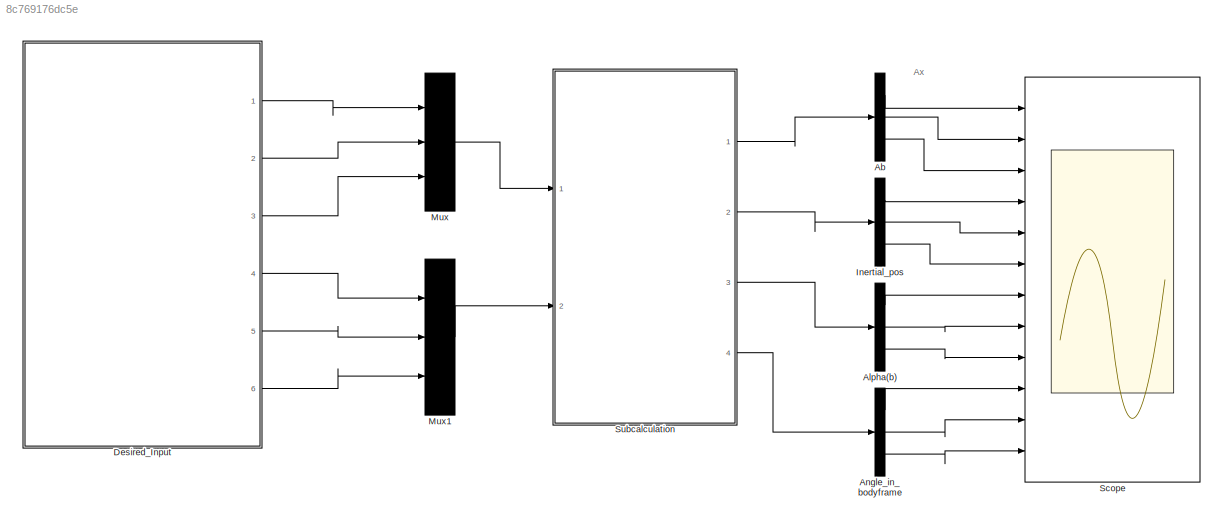
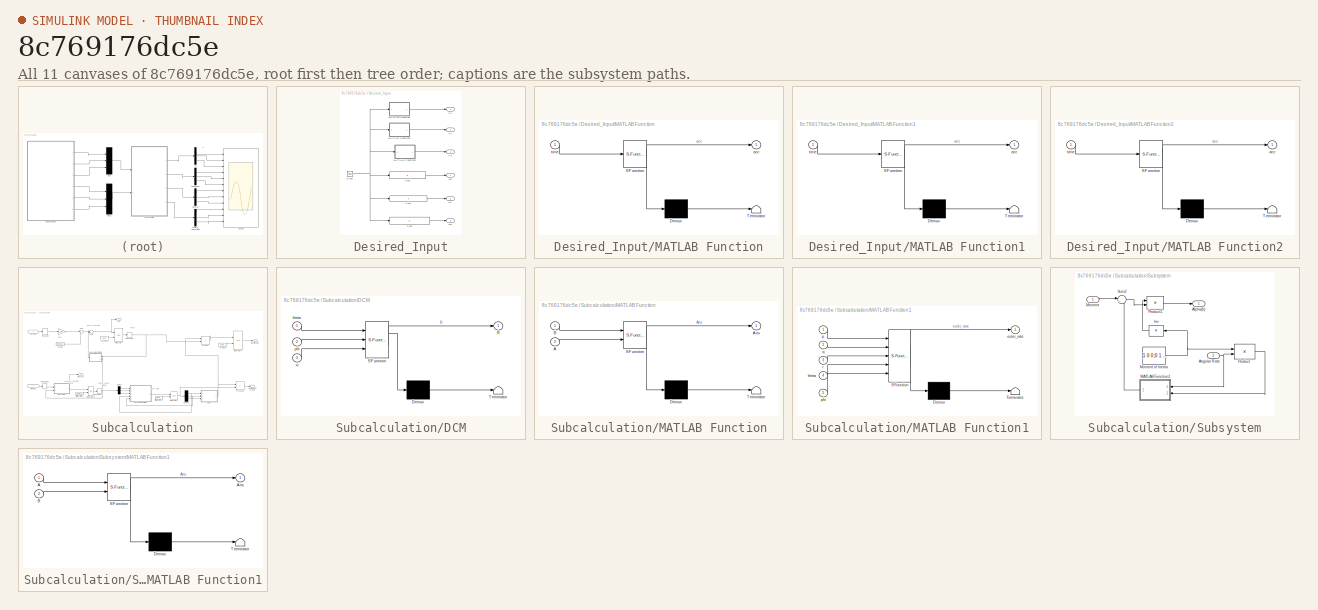
[diagram: thumbnail index - all 11 canvases of the model, root first then tree order]
MODEL slx_8c769176dc5e
KIND model
CONFIG AbsTol = auto
CONFIG EnableMultiTasking = off
CONFIG FixedStep = 0.01
CONFIG MaxStep = auto
CONFIG MinStep = auto
CONFIG RelTol = 1e-3
CONFIG SampleTimeConstraint = Unconstrained
CONFIG Solver = FixedStepAuto
CONFIG SolverName = FixedStepAuto
CONFIG StartTime = 0.0
CONFIG StopTime = 150
BLOCK [Demux] Ab
  DisplayOption = bar
  Outputs = 3
  Ports = [1, 3]
BLOCK [Demux] Alpha(b)
  DisplayOption = bar
  Outputs = 3
  Ports = [1, 3]
BLOCK [Demux] Angle_in_bodyframe
  DisplayOption = bar
  Outputs = 3
  Ports = [1, 3]
BLOCK [SubSystem] Desired_Input
  Ports = [0, 6]
  RequestExecContextInheritance = off
  Variant = off
BLOCK [Clock] Desired_Input/Clock
BLOCK [Fcn] Desired_Input/Fcn2
  Expr = 0
BLOCK [Fcn] Desired_Input/Fcn5
  Expr = 0
BLOCK [Fcn] Desired_Input/Fcn6
  Expr = 0
BLOCK [Outport] Desired_Input/Fx
  IconDisplay = Port number
BLOCK [Outport] Desired_Input/Fy
  IconDisplay = Port number
  Port = 2
BLOCK [Outport] Desired_Input/Fz
  IconDisplay = Port number
  Port = 3
BLOCK [SubSystem] Desired_Input/MATLAB Function
  ErrorFcn = Stateflow.Translate.translate
  PermitHierarchicalResolution = ExplicitOnly
  Ports = [1, 1]
  RequestExecContextInheritance = off
  SFBlockType = MATLAB Function
  TreatAsAtomicUnit = on
  Variant = off
BLOCK [Demux] Desired_Input/MATLAB Function/ Demux 
  Outputs = 1
  Ports = [1, 1]
BLOCK [S-Function] Desired_Input/MATLAB Function/ SFunction 
  EnableBusSupport = on
  FunctionName = sf_sfun
  PortCounts = [1 2]
  Ports = [1, 2]
  SFcnIsStateOwnerBlock = off
  SFunctionDeploymentMode = off
  Tag = Stateflow S-Function Force_input_user 5
BLOCK [Terminator] Desired_Input/MATLAB Function/ Terminator 
BLOCK [Outport] Desired_Input/MATLAB Function/acc
  IconDisplay = Port number
BLOCK [Inport] Desired_Input/MATLAB Function/time
  IconDisplay = Port number
BLOCK [SubSystem] Desired_Input/MATLAB Function1
  ErrorFcn = Stateflow.Translate.translate
  PermitHierarchicalResolution = ExplicitOnly
  Ports = [1, 1]
  RequestExecContextInheritance = off
  SFBlockType = MATLAB Function
  TreatAsAtomicUnit = on
  Variant = off
BLOCK [Demux] Desired_Input/MATLAB Function1/ Demux 
  Outputs = 1
  Ports = [1, 1]
BLOCK [S-Function] Desired_Input/MATLAB Function1/ SFunction 
  EnableBusSupport = on
  FunctionName = sf_sfun
  PortCounts = [1 2]
  Ports = [1, 2]
  SFcnIsStateOwnerBlock = off
  SFunctionDeploymentMode = off
  Tag = Stateflow S-Function Force_input_user 6
BLOCK [Terminator] Desired_Input/MATLAB Function1/ Terminator 
BLOCK [Outport] Desired_Input/MATLAB Function1/acc
  IconDisplay = Port number
BLOCK [Inport] Desired_Input/MATLAB Function1/time
  IconDisplay = Port number
BLOCK [SubSystem] Desired_Input/MATLAB Function2
  ErrorFcn = Stateflow.Translate.translate
  PermitHierarchicalResolution = ExplicitOnly
  Ports = [1, 1]
  RequestExecContextInheritance = off
  SFBlockType = MATLAB Function
  TreatAsAtomicUnit = on
  Variant = off
BLOCK [Demux] Desired_Input/MATLAB Function2/ Demux 
  Outputs = 1
  Ports = [1, 1]
BLOCK [S-Function] Desired_Input/MATLAB Function2/ SFunction 
  EnableBusSupport = on
  FunctionName = sf_sfun
  PortCounts = [1 2]
  Ports = [1, 2]
  SFcnIsStateOwnerBlock = off
  SFunctionDeploymentMode = off
  Tag = Stateflow S-Function Force_input_user 7
BLOCK [Terminator] Desired_Input/MATLAB Function2/ Terminator 
BLOCK [Outport] Desired_Input/MATLAB Function2/acc
  IconDisplay = Port number
BLOCK [Inport] Desired_Input/MATLAB Function2/time
  IconDisplay = Port number
BLOCK [Outport] Desired_Input/Mx
  IconDisplay = Port number
  Port = 4
BLOCK [Outport] Desired_Input/My
  IconDisplay = Port number
  Port = 5
BLOCK [Outport] Desired_Input/Mz 
  IconDisplay = Port number
  Port = 6
BLOCK [Demux] Inertial_pos
  DisplayOption = bar
  Outputs = 3
  Ports = [1, 3]
BLOCK [Mux] Mux
  DisplayOption = bar
  Inputs = 3
  Ports = [3, 1]
BLOCK [Mux] Mux1
  DisplayOption = bar
  Inputs = 3
  Ports = [3, 1]
BLOCK [Scope] Scope
  NumInputPorts = 12
  Ports = [12]
  ScopeSpecificationString = Simulink.scopes.TimeScopeBlockCfg('CurrentConfiguration', extmgr.ConfigurationSet(extmgr.Configuration('Core','General UI',true,'FigureColor',[0 0 0]),extmgr.Configuration('Core','Source UI',true),extmgr.Configuration('Sources','WiredSimulink',true),extmgr.Configuration('Visuals','Time Domain',true,'SerializedDisplays',{struct('MinYLimReal','-12.5','MaxYLimReal','12.5','YLabelReal','','MinYLimMag'...<+10441ch>
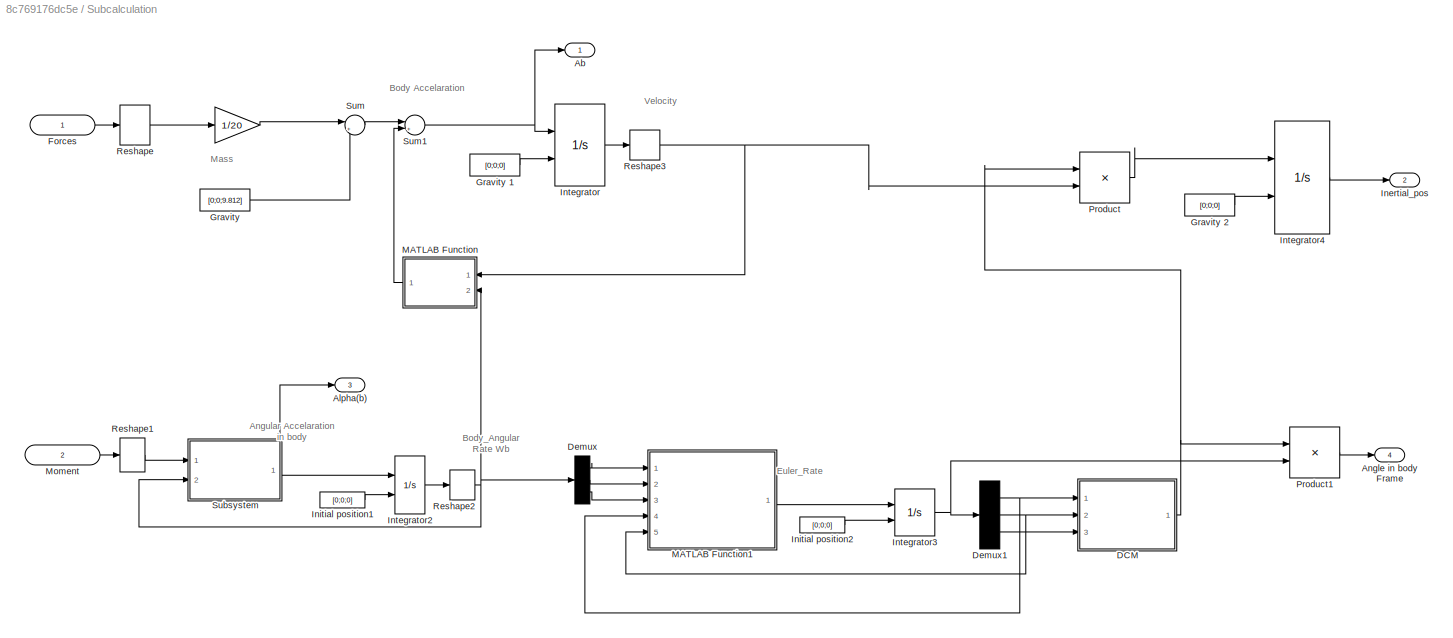
BLOCK [SubSystem] Subcalculation
  Ports = [2, 4]
  RequestExecContextInheritance = off
  Variant = off
BLOCK [Gain] Subcalculation/ 
  Gain = 1/20
  OutDataTypeStr = Inherit: Inherit via internal rule
  ParamDataTypeStr = Inherit: Inherit via internal rule
  SaturateOnIntegerOverflow = off
BLOCK [Outport] Subcalculation/Ab 
  IconDisplay = Port number
BLOCK [Outport] Subcalculation/Alpha(b) 
  IconDisplay = Port number
  Port = 3
BLOCK [Outport] Subcalculation/Angle in body Frame
  IconDisplay = Port number
  Port = 4
BLOCK [SubSystem] Subcalculation/DCM
  ErrorFcn = Stateflow.Translate.translate
  PermitHierarchicalResolution = ExplicitOnly
  Ports = [3, 1]
  RequestExecContextInheritance = off
  SFBlockType = MATLAB Function
  TreatAsAtomicUnit = on
  Variant = off
BLOCK [Demux] Subcalculation/DCM/ Demux 
  Outputs = 1
  Ports = [1, 1]
BLOCK [S-Function] Subcalculation/DCM/ SFunction 
  EnableBusSupport = on
  FunctionName = sf_sfun
  PortCounts = [3 2]
  Ports = [3, 2]
  SFcnIsStateOwnerBlock = off
  SFunctionDeploymentMode = off
  Tag = Stateflow S-Function Force_input_user 3
BLOCK [Terminator] Subcalculation/DCM/ Terminator 
BLOCK [Outport] Subcalculation/DCM/R
  IconDisplay = Port number
BLOCK [Inport] Subcalculation/DCM/phi
  IconDisplay = Port number
  Port = 2
BLOCK [Inport] Subcalculation/DCM/theta
  IconDisplay = Port number
BLOCK [Inport] Subcalculation/DCM/xi
  IconDisplay = Port number
  Port = 3
BLOCK [Demux] Subcalculation/Demux
  DisplayOption = bar
  Outputs = 3
  Ports = [1, 3]
BLOCK [Demux] Subcalculation/Demux1
  DisplayOption = bar
  Outputs = 3
  Ports = [1, 3]
BLOCK [Inport] Subcalculation/Forces 
  IconDisplay = Port number
BLOCK [Constant] Subcalculation/Gravity 
  Value = [0;0;9.812]
  VectorParams1D = off
BLOCK [Constant] Subcalculation/Gravity 1
  Value = [0;0;0]
  VectorParams1D = off
BLOCK [Constant] Subcalculation/Gravity 2
  Value = [0;0;0]
  VectorParams1D = off
BLOCK [Outport] Subcalculation/Inertial_pos
  IconDisplay = Port number
  Port = 2
BLOCK [Constant] Subcalculation/Initial position1
  Value = [0;0;0]
BLOCK [Constant] Subcalculation/Initial position2
  Value = [0;0;0]
BLOCK [Integrator] Subcalculation/Integrator
  InitialConditionSource = external
  LowerSaturationLimit = 0
  Ports = [2, 1]
BLOCK [Integrator] Subcalculation/Integrator2
  InitialConditionSource = external
  Ports = [2, 1]
BLOCK [Integrator] Subcalculation/Integrator3
  InitialConditionSource = external
  Ports = [2, 1]
BLOCK [Integrator] Subcalculation/Integrator4
  InitialConditionSource = external
  LowerSaturationLimit = 0
  Ports = [2, 1]
BLOCK [SubSystem] Subcalculation/MATLAB Function
  ErrorFcn = Stateflow.Translate.translate
  PermitHierarchicalResolution = ExplicitOnly
  Ports = [2, 1]
  RequestExecContextInheritance = off
  SFBlockType = MATLAB Function
  TreatAsAtomicUnit = on
  Variant = off
BLOCK [Demux] Subcalculation/MATLAB Function/ Demux 
  Outputs = 1
  Ports = [1, 1]
BLOCK [S-Function] Subcalculation/MATLAB Function/ SFunction 
  EnableBusSupport = on
  FunctionName = sf_sfun
  PortCounts = [2 2]
  Ports = [2, 2]
  SFcnIsStateOwnerBlock = off
  SFunctionDeploymentMode = off
  Tag = Stateflow S-Function Force_input_user 1
BLOCK [Terminator] Subcalculation/MATLAB Function/ Terminator 
BLOCK [Inport] Subcalculation/MATLAB Function/A
  IconDisplay = Port number
  Port = 2
BLOCK [Outport] Subcalculation/MATLAB Function/Ans
  IconDisplay = Port number
BLOCK [Inport] Subcalculation/MATLAB Function/B
  IconDisplay = Port number
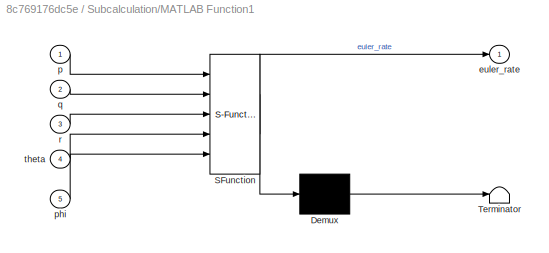
BLOCK [SubSystem] Subcalculation/MATLAB Function1
  ErrorFcn = Stateflow.Translate.translate
  PermitHierarchicalResolution = ExplicitOnly
  Ports = [5, 1]
  RequestExecContextInheritance = off
  SFBlockType = MATLAB Function
  TreatAsAtomicUnit = on
  Variant = off
BLOCK [Demux] Subcalculation/MATLAB Function1/ Demux 
  Outputs = 1
  Ports = [1, 1]
BLOCK [S-Function] Subcalculation/MATLAB Function1/ SFunction 
  EnableBusSupport = on
  FunctionName = sf_sfun
  PortCounts = [5 2]
  Ports = [5, 2]
  SFcnIsStateOwnerBlock = off
  SFunctionDeploymentMode = off
  Tag = Stateflow S-Function Force_input_user 2
BLOCK [Terminator] Subcalculation/MATLAB Function1/ Terminator 
BLOCK [Outport] Subcalculation/MATLAB Function1/euler_rate
  IconDisplay = Port number
BLOCK [Inport] Subcalculation/MATLAB Function1/p
  IconDisplay = Port number
BLOCK [Inport] Subcalculation/MATLAB Function1/phi
  IconDisplay = Port number
  Port = 5
BLOCK [Inport] Subcalculation/MATLAB Function1/q
  IconDisplay = Port number
  Port = 2
BLOCK [Inport] Subcalculation/MATLAB Function1/r
  IconDisplay = Port number
  Port = 3
BLOCK [Inport] Subcalculation/MATLAB Function1/theta
  IconDisplay = Port number
  Port = 4
BLOCK [Inport] Subcalculation/Moment
  IconDisplay = Port number
  Port = 2
BLOCK [Product] Subcalculation/Product
  InputSameDT = off
  Multiplication = Matrix(*)
  OutDataTypeStr = Inherit: Inherit via internal rule
  Ports = [2, 1]
  RndMeth = Floor
  SaturateOnIntegerOverflow = off
BLOCK [Product] Subcalculation/Product1
  InputSameDT = off
  Multiplication = Matrix(*)
  OutDataTypeStr = Inherit: Inherit via internal rule
  Ports = [2, 1]
  RndMeth = Floor
  SaturateOnIntegerOverflow = off
BLOCK [Reshape] Subcalculation/Reshape
  OutputDimensionality = Column vector (2-D)
  Ports = [1, 1]
BLOCK [Reshape] Subcalculation/Reshape1
  OutputDimensionality = Column vector (2-D)
  Ports = [1, 1]
BLOCK [Reshape] Subcalculation/Reshape2
  OutputDimensionality = Column vector (2-D)
  Ports = [1, 1]
BLOCK [Reshape] Subcalculation/Reshape3
  OutputDimensionality = Column vector (2-D)
  Ports = [1, 1]
BLOCK [SubSystem] Subcalculation/Subsystem
  Ports = [2, 1]
  RequestExecContextInheritance = off
  Variant = off
BLOCK [Outport] Subcalculation/Subsystem/Alpha(b)
  IconDisplay = Port number
BLOCK [Inport] Subcalculation/Subsystem/Angular Rate 
  IconDisplay = Port number
  Port = 2
BLOCK [Product] Subcalculation/Subsystem/Inv
  InputSameDT = off
  Inputs = /
  Multiplication = Matrix(*)
  OutDataTypeStr = Inherit: Inherit via internal rule
  Ports = [1, 1]
  RndMeth = Floor
  SaturateOnIntegerOverflow = off
BLOCK [SubSystem] Subcalculation/Subsystem/MATLAB Function1
  ErrorFcn = Stateflow.Translate.translate
  PermitHierarchicalResolution = ExplicitOnly
  Ports = [2, 1]
  RequestExecContextInheritance = off
  SFBlockType = MATLAB Function
  TreatAsAtomicUnit = on
  Variant = off
BLOCK [Demux] Subcalculation/Subsystem/MATLAB Function1/ Demux 
  Outputs = 1
  Ports = [1, 1]
BLOCK [S-Function] Subcalculation/Subsystem/MATLAB Function1/ SFunction 
  EnableBusSupport = on
  FunctionName = sf_sfun
  PortCounts = [2 2]
  Ports = [2, 2]
  SFcnIsStateOwnerBlock = off
  SFunctionDeploymentMode = off
  Tag = Stateflow S-Function Force_input_user 4
BLOCK [Terminator] Subcalculation/Subsystem/MATLAB Function1/ Terminator 
BLOCK [Inport] Subcalculation/Subsystem/MATLAB Function1/A
  IconDisplay = Port number
BLOCK [Outport] Subcalculation/Subsystem/MATLAB Function1/Ans
  IconDisplay = Port number
BLOCK [Inport] Subcalculation/Subsystem/MATLAB Function1/B
  IconDisplay = Port number
  Port = 2
BLOCK [Inport] Subcalculation/Subsystem/Moment 
  IconDisplay = Port number
BLOCK [Constant] Subcalculation/Subsystem/Moment of Inertia 
  Value = [1 0 0;0 1 0;0 0 1]
BLOCK [Product] Subcalculation/Subsystem/Product
  InputSameDT = off
  Multiplication = Matrix(*)
  OutDataTypeStr = Inherit: Inherit via internal rule
  Ports = [2, 1]
  RndMeth = Floor
  SaturateOnIntegerOverflow = off
BLOCK [Product] Subcalculation/Subsystem/Product1
  InputSameDT = off
  Multiplication = Matrix(*)
  OutDataTypeStr = Inherit: Inherit via internal rule
  Ports = [2, 1]
  RndMeth = Floor
  SaturateOnIntegerOverflow = off
BLOCK [Sum] Subcalculation/Subsystem/Sum2
  IconShape = round
  InputSameDT = off
  Inputs = |+-
  OutDataTypeStr = Inherit: Inherit via internal rule
  Ports = [2, 1]
  SaturateOnIntegerOverflow = off
BLOCK [Sum] Subcalculation/Sum
  IconShape = round
  InputSameDT = off
  Inputs = |+-
  OutDataTypeStr = Inherit: Inherit via internal rule
  Ports = [2, 1]
  SaturateOnIntegerOverflow = off
BLOCK [Sum] Subcalculation/Sum1
  IconShape = round
  InputSameDT = off
  Inputs = |+-
  OutDataTypeStr = Inherit: Inherit via internal rule
  Ports = [2, 1]
  SaturateOnIntegerOverflow = off
ANNOTATION (root): Ax
ANNOTATION Subcalculation: Angular Accelaration in body
ANNOTATION Subcalculation: Body Accelaration
ANNOTATION Subcalculation: Body_Angular Rate Wb
ANNOTATION Subcalculation: Euler_Rate
ANNOTATION Subcalculation: Mass
ANNOTATION Subcalculation: Velocity
LINE Ab:1 -> Scope:1
LINE Ab:2 -> Scope:2
LINE Ab:3 -> Scope:3
LINE Alpha(b):1 -> Scope:7
LINE Alpha(b):2 -> Scope:8
LINE Alpha(b):3 -> Scope:9
LINE Angle_in_bodyframe:1 -> Scope:10
LINE Angle_in_bodyframe:2 -> Scope:11
LINE Angle_in_bodyframe:3 -> Scope:12
NET Desired_Input/Clock:1 -> Desired_Input/Fcn2:1, Desired_Input/Fcn5:1, Desired_Input/Fcn6:1, Desired_Input/MATLAB Function1:1, Desired_Input/MATLAB Function2:1, Desired_Input/MATLAB Function:1
LINE Desired_Input/Fcn2:1 -> Desired_Input/My:1
LINE Desired_Input/Fcn5:1 -> Desired_Input/Mx:1
LINE Desired_Input/Fcn6:1 -> Desired_Input/Mz :1
LINE Desired_Input/MATLAB Function1:1 -> Desired_Input/Fy:1
LINE Desired_Input/MATLAB Function2:1 -> Desired_Input/Fz:1
LINE Desired_Input/MATLAB Function:1 -> Desired_Input/Fx:1
LINE Desired_Input:1 -> Mux:1
LINE Desired_Input:2 -> Mux:2
LINE Desired_Input:3 -> Mux:3
LINE Desired_Input:4 -> Mux1:1
LINE Desired_Input:5 -> Mux1:2
LINE Desired_Input:6 -> Mux1:3
LINE Inertial_pos:1 -> Scope:4
LINE Inertial_pos:2 -> Scope:5
LINE Inertial_pos:3 -> Scope:6
LINE Mux1:1 -> Subcalculation:2
LINE Mux:1 -> Subcalculation:1
LINE Subcalculation/ :1 -> Subcalculation/Sum:1
NET Subcalculation/DCM:1 -> Subcalculation/Product1:1, Subcalculation/Product:1
NET Subcalculation/Demux1:1 -> Subcalculation/DCM:1, Subcalculation/MATLAB Function1:4
NET Subcalculation/Demux1:2 -> Subcalculation/DCM:2, Subcalculation/MATLAB Function1:5
LINE Subcalculation/Demux1:3 -> Subcalculation/DCM:3
LINE Subcalculation/Demux:1 -> Subcalculation/MATLAB Function1:1
LINE Subcalculation/Demux:2 -> Subcalculation/MATLAB Function1:2
LINE Subcalculation/Demux:3 -> Subcalculation/MATLAB Function1:3
LINE Subcalculation/Forces :1 -> Subcalculation/Reshape:1
LINE Subcalculation/Gravity 1:1 -> Subcalculation/Integrator:2
LINE Subcalculation/Gravity 2:1 -> Subcalculation/Integrator4:2
LINE Subcalculation/Gravity :1 -> Subcalculation/Sum:2
LINE Subcalculation/Initial position1:1 -> Subcalculation/Integrator2:2
LINE Subcalculation/Initial position2:1 -> Subcalculation/Integrator3:2
LINE Subcalculation/Integrator2:1 -> Subcalculation/Reshape2:1
NET Subcalculation/Integrator3:1 -> Subcalculation/Demux1:1, Subcalculation/Product1:2
LINE Subcalculation/Integrator4:1 -> Subcalculation/Inertial_pos:1
LINE Subcalculation/Integrator:1 -> Subcalculation/Reshape3:1
LINE Subcalculation/MATLAB Function1:1 -> Subcalculation/Integrator3:1
LINE Subcalculation/MATLAB Function:1 -> Subcalculation/Sum1:2
LINE Subcalculation/Moment:1 -> Subcalculation/Reshape1:1
LINE Subcalculation/Product1:1 -> Subcalculation/Angle in body Frame:1
LINE Subcalculation/Product:1 -> Subcalculation/Integrator4:1
LINE Subcalculation/Reshape1:1 -> Subcalculation/Subsystem:1
NET Subcalculation/Reshape2:1 -> Subcalculation/Demux:1, Subcalculation/MATLAB Function:2, Subcalculation/Subsystem:2
NET Subcalculation/Reshape3:1 -> Subcalculation/MATLAB Function:1, Subcalculation/Product:2
LINE Subcalculation/Reshape:1 -> Subcalculation/ :1
NET Subcalculation/Subsystem/Angular Rate :1 -> Subcalculation/Subsystem/MATLAB Function1:1, Subcalculation/Subsystem/Product:2
LINE Subcalculation/Subsystem/Inv:1 -> Subcalculation/Subsystem/Product1:1
LINE Subcalculation/Subsystem/MATLAB Function1:1 -> Subcalculation/Subsystem/Sum2:2
LINE Subcalculation/Subsystem/Moment :1 -> Subcalculation/Subsystem/Sum2:1
NET Subcalculation/Subsystem/Moment of Inertia :1 -> Subcalculation/Subsystem/Inv:1, Subcalculation/Subsystem/Product:1
LINE Subcalculation/Subsystem/Product1:1 -> Subcalculation/Subsystem/Alpha(b):1
LINE Subcalculation/Subsystem/Product:1 -> Subcalculation/Subsystem/MATLAB Function1:2
LINE Subcalculation/Subsystem/Sum2:1 -> Subcalculation/Subsystem/Product1:2
NET Subcalculation/Subsystem:1 -> Subcalculation/Alpha(b) :1, Subcalculation/Integrator2:1
NET Subcalculation/Sum1:1 -> Subcalculation/Ab :1, Subcalculation/Integrator:1
LINE Subcalculation/Sum:1 -> Subcalculation/Sum1:1
LINE Subcalculation:1 -> Ab:1
LINE Subcalculation:2 -> Inertial_pos:1
LINE Subcalculation:3 -> Alpha(b):1
LINE Subcalculation:4 -> Angle_in_bodyframe:1
note: NET lines group one-source signal fan-out (src -> all destinations, sorted); 1:1 wires keep LINE
CHART Subcalculation/MATLAB Function states=1 transitions=1
  STATE_LABEL 'eML_blk_kernel()'
  STATE_LABEL 'SCRIPT:\nfunction Ans=cross(B,A)\nAhat=[0 -A(3) A(2);A(3) 0 -A(1);-A(2) A(1) 0];\nAns=Ahat*B;\nend'
CHART Subcalculation/MATLAB Function1 states=1 transitions=1
  STATE_LABEL 'eML_blk_kernel()'
  STATE_LABEL "SCRIPT:\nfunction euler_rate = euler_rates(p,q,r,theta,phi)\n%Under the following condition \n%Euler_rate=[xidot;thetadot;phidot] xidot around x thetadot around y phidot\n%around z \n%Rotation is around X-Y-Z axis\n%omegahatinertial=Rdot*R';\n% Ris Rsb\n% A comes from A*euler_rates=omegabody\n%omegabody=[p;q;r]\nA=[-cos(phi)*cos(theta),sin(phi),0;-cos(theta)*sin(phi),-cos(phi),0;sin(theta),0,-1];\neuler_rate...<+18ch>"
CHART Subcalculation/DCM states=1 transitions=1
  STATE_LABEL 'eML_blk_kernel()'
  STATE_LABEL "SCRIPT:\nfunction R= Rotation(theta,phi,xi)\n\nRx=[1,0,0;0,cos(xi),-sin(xi);0,sin(xi),cos(xi)]';\nRy=[cos(theta),0,sin(theta);0,1,0;-sin(theta),0,cos(theta)]';\nRz=[cos(phi),-sin(phi),0;sin(phi),cos(phi),0;0,0,1]';\nR=(Rx*Ry*Rz);\n"
CHART Subcalculation/Subsystem/MATLAB Function1 states=1 transitions=1
  STATE_LABEL 'eML_blk_kernel()'
  STATE_LABEL 'SCRIPT:\nfunction Ans=cross(A,B)\nAhat=[0 -A(3) A(2);A(3) 0 -A(1);-A(2) A(1) 0];\nAns=Ahat*B;\nend'
CHART Desired_Input/MATLAB Function states=1 transitions=1
  STATE_LABEL 'eML_blk_kernel()'
  STATE_LABEL 'SCRIPT:\nfunction acc= fcn(time)\nacc=0;\nif time<=5 \n    acc=0;\nelseif time<=15\n    acc=200;\nelseif time<=25\n    acc=-200;\nelseif time<=30\n    acc=0;\n\nelseif time<=40\n    acc=-200;\nelseif 40<time&&time<=50\n    acc=+200;\n\nelse\n    acc=0;\nend\nend\n'
CHART Desired_Input/MATLAB Function1 states=1 transitions=1
  STATE_LABEL 'eML_blk_kernel()'
  STATE_LABEL 'SCRIPT:\nfunction acc = fcn(time)\nacc=0;\nif time<=25 \n    acc=0;\nelseif time<=27.5\n    acc=400;\n\nelseif time<=30\n    acc=-400;\nelseif time<=50\n    acc=0;\nelse\n    acc=0;\nend\n'
CHART Desired_Input/MATLAB Function2 states=1 transitions=1
  STATE_LABEL 'eML_blk_kernel()'
  STATE_LABEL 'SCRIPT:\nfunction acc = fcn(time)\nacc=196.2;\nif time<=2.5 \n    acc=236.2;\nelseif time<=5\n    acc=156.24;\nelse \n    acc=196.2;\nend\n\nend\n'
